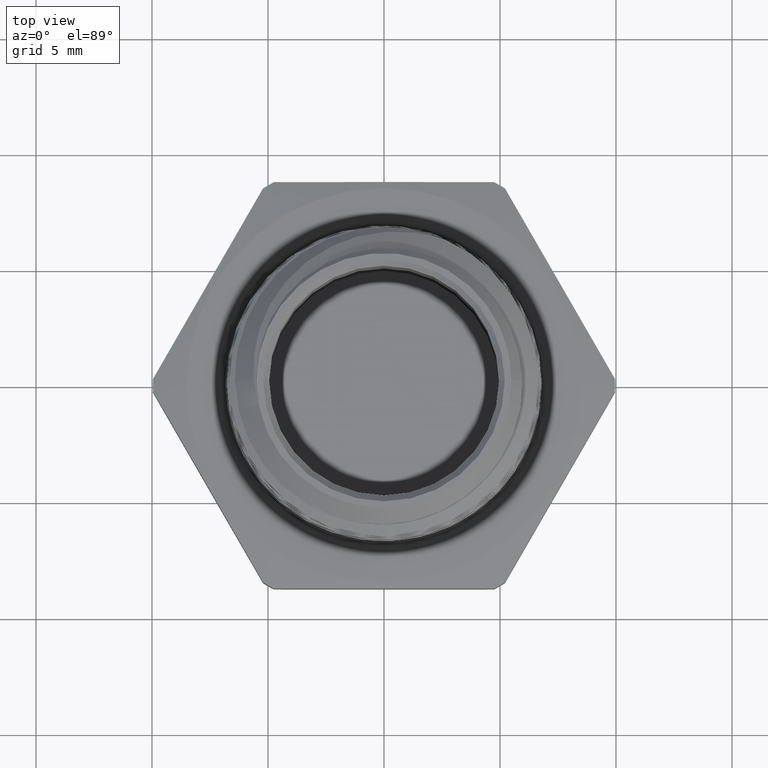
[diagram: clean part render]
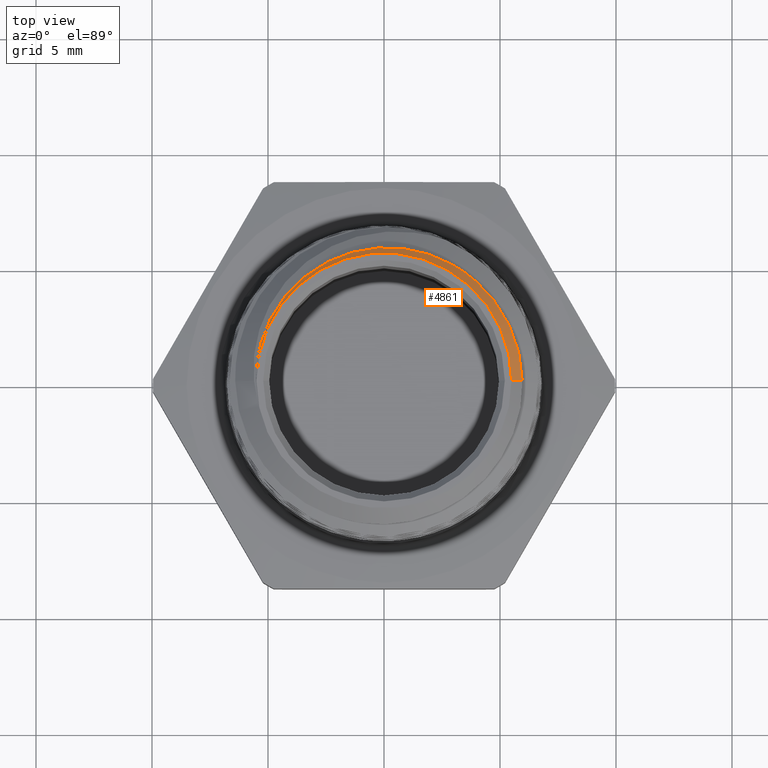
[diagram: same view with one face highlighted and labeled with its STEP entity id]
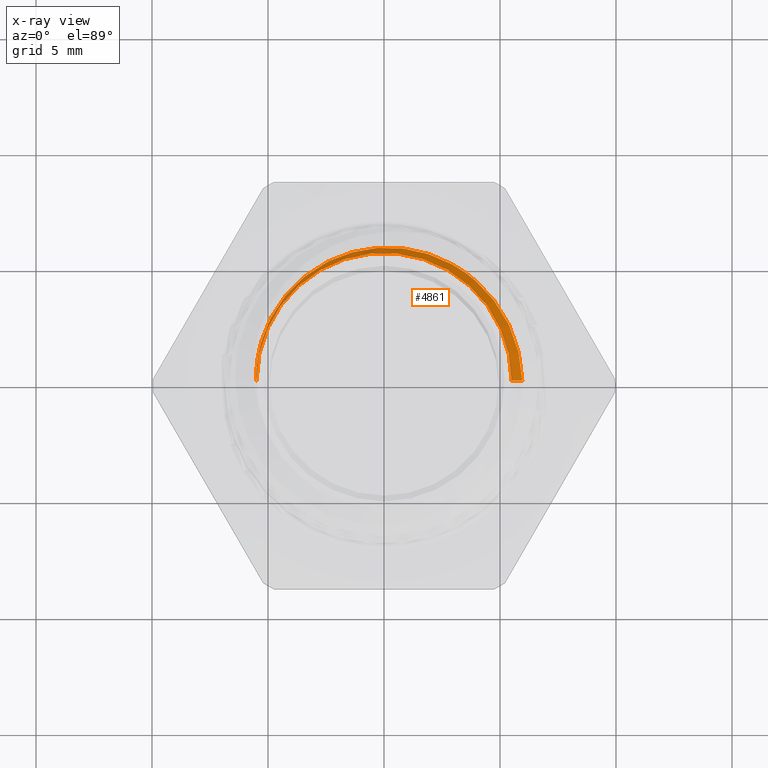
[diagram: x-ray of the same camera — body ghosted, the highlighted face saturated]
A machine part, top view. The second image highlights one B-rep face of the part: STEP entity #4861.
The next image is the same camera in x-ray: the body ghosted, the highlighted face saturated — about 0% of this face is hidden behind the body in this view.
In plain terms, the highlighted conical surface has half-angle 45 deg.
Its self-contained STEP definition (entity closure, byte-faithful):
#706 = AXIS2_PLACEMENT_3D ( 'NONE', #4402, #4403, #4404 ) ;
#732 = AXIS2_PLACEMENT_3D ( 'NONE', #3405, #3406, #3404 ) ;
#1596 = B_SPLINE_CURVE_WITH_KNOTS ( 'NONE', 3,
 ( #5155, #5163, #5156, #5154 ),
 .UNSPECIFIED., .F., .F.,
 ( 4, 4 ),
 ( 1.347251210040534700E-016, 0.0004323481786132546500 ),
 .UNSPECIFIED. ) ;
#1645 = B_SPLINE_CURVE_WITH_KNOTS ( 'NONE', 3,
 ( #4343, #4344, #4348, #4349, #4350, #4351, #4352, #4353, #4354, #4355, #4356, #4357, #4358, #4359, #4360, #4361, #4362, #4363, #4364, #4365, #4366, #4367, #4368, #4369, #4370, #4371, #4372, #4373, #4374, #4375, #4376, #4377, #4378, #4379, #4380, #4381, #4382, #4383, #4384, #4385 ),
 .UNSPECIFIED., .F., .F.,
 ( 4, 2, 2, 2, 2, 2, 2, 2, 2, 2, 2, 2, 2, 2, 2, 2, 2, 2, 2, 4 ),
 ( 0.02966671541711131100, 0.03075937400284263100, 0.03185203258857394900, 0.03294469117430527000, 0.03349102046717093000, 0.03403734976003659100, 0.03513000834576790500, 0.03622266693149922600, 0.03731532551723054600, 0.03840798410296186000, 0.03950064268869318100, 0.04004697198155883500, 0.04059330127442449500, 0.04168595986015581600, 0.04277861844588713700, 0.04332494773875279800, 0.04387127703161845800, 0.04496393561734977900, 0.04605659420308110000, 0.04714925278881242100 ),
 .UNSPECIFIED. ) ;
#1652 = EDGE_CURVE ( 'NONE', #1830, #1870, #1596, .T. ) ;
#1653 = EDGE_CURVE ( 'NONE', #1879, #1870, #2563, .T. ) ;
#1757 = EDGE_CURVE ( 'NONE', #1883, #1830, #1645, .T. ) ;
#1758 = EDGE_CURVE ( 'NONE', #1856, #1883, #2658, .T. ) ;
#1763 = EDGE_CURVE ( 'NONE', #1879, #1856, #2664, .T. ) ;
#1830 = VERTEX_POINT ( 'NONE', #4527 ) ;
#1856 = VERTEX_POINT ( 'NONE', #4550 ) ;
#1870 = VERTEX_POINT ( 'NONE', #4564 ) ;
#1879 = VERTEX_POINT ( 'NONE', #4573 ) ;
#1883 = VERTEX_POINT ( 'NONE', #4577 ) ;
#1969 = ORIENTED_EDGE ( 'NONE', *, *, #1653, .F. ) ;
#1971 = ORIENTED_EDGE ( 'NONE', *, *, #1652, .T. ) ;
#1973 = ORIENTED_EDGE ( 'NONE', *, *, #1757, .T. ) ;
#1976 = ORIENTED_EDGE ( 'NONE', *, *, #1758, .T. ) ;
#1978 = ORIENTED_EDGE ( 'NONE', *, *, #1763, .T. ) ;
#2012 = EDGE_LOOP ( 'NONE', ( #1978, #1976, #1973, #1971, #1969 ) ) ;
#2562 = VECTOR ( 'NONE', #5153, 39.37007874015748900 ) ;
#2563 = LINE ( 'NONE', #5185, #2562 ) ;
#2658 = LINE ( 'NONE', #4386, #2659 ) ;
#2659 = VECTOR ( 'NONE', #4387, 39.37007874015748900 ) ;
#2664 = CIRCLE ( 'NONE', #706, 0.2165000000000000800 ) ;
#2717 = FACE_OUTER_BOUND ( 'NONE', #2012, .T. ) ;
#2726 = CONICAL_SURFACE ( 'NONE', #732, 0.2615562317067677800, 0.7853981633974539400 ) ;
#3404 = DIRECTION ( 'NONE',  ( -1.000000000000000000, 0.0000000000000000000, 0.0000000000000000000 ) ) ;
#3405 = CARTESIAN_POINT ( 'NONE',  ( 0.0000000000000000000, 0.0000000000000000000, 0.5249437682932327500 ) ) ;
#3406 = DIRECTION ( 'NONE',  ( -0.0000000000000000000, -0.0000000000000000000, -1.000000000000000000 ) ) ;
#4343 = CARTESIAN_POINT ( 'NONE',  ( 0.2346543190317450000, -2.694737243426980100E-016, 0.5518456809682552600 ) ) ;
#4344 = CARTESIAN_POINT ( 'NONE',  ( 0.2343031175091687700, 0.01448583167142679200, 0.5521968824908318800 ) ) ;
#4348 = CARTESIAN_POINT ( 'NONE',  ( 0.2325944590360651000, 0.02892367767427217100, 0.5525534487838057500 ) ) ;
#4349 = CARTESIAN_POINT ( 'NONE',  ( 0.2266308189050325100, 0.05699528110387845600, 0.5532528832608167900 ) ) ;
#4350 = CARTESIAN_POINT ( 'NONE',  ( 0.2223733134705268300, 0.07074585328625294900, 0.5535984845380933500 ) ) ;
#4351 = CARTESIAN_POINT ( 'NONE',  ( 0.2111765271684534800, 0.09761845890427502100, 0.5543079700998209100 ) ) ;
#4352 = CARTESIAN_POINT ( 'NONE',  ( 0.2044112676619677900, 0.1103165593831866700, 0.5546640483021493300 ) ) ;
#4353 = CARTESIAN_POINT ( 'NONE',  ( 0.1925910152184107900, 0.1283058758433217000, 0.5551944733942511000 ) ) ;
#4354 = CARTESIAN_POINT ( 'NONE',  ( 0.1883701887126190100, 0.1341247300404667400, 0.5553708072271573700 ) ) ;
#4355 = CARTESIAN_POINT ( 'NONE',  ( 0.1793553344658686800, 0.1453998020902390100, 0.5557244142093573600 ) ) ;
#4356 = CARTESIAN_POINT ( 'NONE',  ( 0.1745329579811675200, 0.1508833474045341300, 0.5559026453348394600 ) ) ;
#4357 = CARTESIAN_POINT ( 'NONE',  ( 0.1594301920389897000, 0.1664965630497644300, 0.5564358789975282200 ) ) ;
#4358 = CARTESIAN_POINT ( 'NONE',  ( 0.1485136680210676600, 0.1758264456836369500, 0.5567937848399411300 ) ) ;
#4359 = CARTESIAN_POINT ( 'NONE',  ( 0.1250272445829440900, 0.1923828151771618000, 0.5575094845723088700 ) ) ;
#4360 = CARTESIAN_POINT ( 'NONE',  ( 0.1123088667317008000, 0.1996656044792600200, 0.5578696261608046000 ) ) ;
#4361 = CARTESIAN_POINT ( 'NONE',  ( 0.08603179308680264400, 0.2115472824573247100, 0.5585834915587889500 ) ) ;
#4362 = CARTESIAN_POINT ( 'NONE',  ( 0.07245602817809367000, 0.2161933279760405400, 0.5589434640410924100 ) ) ;
#4363 = CARTESIAN_POINT ( 'NONE',  ( 0.04443238993828494500, 0.2229028495415498200, 0.5596686450547731000 ) ) ;
#4364 = CARTESIAN_POINT ( 'NONE',  ( 0.02990730976935127000, 0.2249428028747370900, 0.5600331807776619500 ) ) ;
#4365 = CARTESIAN_POINT ( 'NONE',  ( 0.001186320152042360700, 0.2262024278259572600, 0.5607513473445281400 ) ) ;
#4366 = CARTESIAN_POINT ( 'NONE',  ( -0.01315405712566106500, 0.2254667272322503900, 0.5611140930074288700 ) ) ;
#4367 = CARTESIAN_POINT ( 'NONE',  ( -0.03463369737678134000, 0.2222681091874233200, 0.5616661979449423200 ) ) ;
#4368 = CARTESIAN_POINT ( 'NONE',  ( -0.04179929197080327300, 0.2208436563256543900, 0.5618513617815037400 ) ) ;
#4369 = CARTESIAN_POINT ( 'NONE',  ( -0.05580937678725897400, 0.2173488643848866800, 0.5622164190323715200 ) ) ;
#4370 = CARTESIAN_POINT ( 'NONE',  ( -0.06269318775228642500, 0.2152743424907721500, 0.5623973217228397400 ) ) ;
#4371 = CARTESIAN_POINT ( 'NONE',  ( -0.08298552604680556300, 0.2080821868377252500, 0.5629403382653526100 ) ) ;
#4372 = CARTESIAN_POINT ( 'NONE',  ( -0.09607315096711456500, 0.2019799546416477200, 0.5633080066425760800 ) ) ;
#4373 = CARTESIAN_POINT ( 'NONE',  ( -0.1210950298157839900, 0.1871607318248114400, 0.5640548173856018100 ) ) ;
#4374 = CARTESIAN_POINT ( 'NONE',  ( -0.1326929576446458400, 0.1786567130923805400, 0.5644199943516454700 ) ) ;
#4375 = CARTESIAN_POINT ( 'NONE',  ( -0.1487617993870611100, 0.1643093007585708400, 0.5649687584910975100 ) ) ;
#4376 = CARTESIAN_POINT ( 'NONE',  ( -0.1538949068806465800, 0.1592594197292466500, 0.5651522217852085200 ) ) ;
#4377 = CARTESIAN_POINT ( 'NONE',  ( -0.1637004182359509700, 0.1486078419282294000, 0.5655254507923680500 ) ) ;
#4378 = CARTESIAN_POINT ( 'NONE',  ( -0.1683786950613801500, 0.1429919934494706100, 0.5657150852085489600 ) ) ;
#4379 = CARTESIAN_POINT ( 'NONE',  ( -0.1814107754470596900, 0.1256850705536107200, 0.5662770669495653700 ) ) ;
#4380 = CARTESIAN_POINT ( 'NONE',  ( -0.1888851706149639300, 0.1134279030203615300, 0.5666453624740776000 ) ) ;
#4381 = CARTESIAN_POINT ( 'NONE',  ( -0.2014093250914260600, 0.08747725151702981400, 0.5673869001027741500 ) ) ;
#4382 = CARTESIAN_POINT ( 'NONE',  ( -0.2064475891770435900, 0.07369144908208689900, 0.5677678789737012900 ) ) ;
#4383 = CARTESIAN_POINT ( 'NONE',  ( -0.2135997929147669900, 0.04578805181477439000, 0.5685226588701106600 ) ) ;
#4384 = CARTESIAN_POINT ( 'NONE',  ( -0.2157973226477914700, 0.03154471282382839700, 0.5688959859777231700 ) ) ;
#4385 = CARTESIAN_POINT ( 'NONE',  ( -0.2165591472771045400, 0.01699790674889251400, 0.5692747871373334800 ) ) ;
#4386 = CARTESIAN_POINT ( 'NONE',  ( 0.2615562317067677800, 3.203140019567366300E-017, 0.5249437682932327500 ) ) ;
#4387 = DIRECTION ( 'NONE',  ( 0.7071067811865514600, 8.659560562354980900E-017, -0.7071067811865433500 ) ) ;
#4402 = CARTESIAN_POINT ( 'NONE',  ( 0.0000000000000000000, 0.0000000000000000000, 0.5699999999999999500 ) ) ;
#4403 = DIRECTION ( 'NONE',  ( -0.0000000000000000000, -0.0000000000000000000, -1.000000000000000000 ) ) ;
#4404 = DIRECTION ( 'NONE',  ( -1.000000000000000000, 0.0000000000000000000, 0.0000000000000000000 ) ) ;
#4527 = CARTESIAN_POINT ( 'NONE',  ( -0.2165591472771045400, 0.01699790674889251400, 0.5692747871373334800 ) ) ;
#4550 = CARTESIAN_POINT ( 'NONE',  ( 0.2165000000000000800, 2.873286106867003800E-017, 0.5699999999999999500 ) ) ;
#4564 = CARTESIAN_POINT ( 'NONE',  ( -0.2172128895515021700, -4.857306655882137600E-013, 0.5692871104484982200 ) ) ;
#4573 = CARTESIAN_POINT ( 'NONE',  ( -0.2165000000000000800, 0.0000000000000000000, 0.5699999999999999500 ) ) ;
#4577 = CARTESIAN_POINT ( 'NONE',  ( 0.2346543190317450000, -2.694737243426980100E-016, 0.5518456809682552600 ) ) ;
#4861 = ADVANCED_FACE ( 'NONE', ( #2717 ), #2726, .T. ) ;
#5153 = DIRECTION ( 'NONE',  ( -0.7071067811865514600, 0.0000000000000000000, -0.7071067811865433500 ) ) ;
#5154 = CARTESIAN_POINT ( 'NONE',  ( -0.2172128895515021700, -4.857306655882137600E-013, 0.5692871104484982200 ) ) ;
#5155 = CARTESIAN_POINT ( 'NONE',  ( -0.2165591472771045400, 0.01699790674889251400, 0.5692747871373334800 ) ) ;
#5156 = CARTESIAN_POINT ( 'NONE',  ( -0.2172188138808817700, 0.005670905670841442700, 0.5692811861191310300 ) ) ;
#5163 = CARTESIAN_POINT ( 'NONE',  ( -0.2169999717978645700, 0.01134092758775652100, 0.5692779737929600800 ) ) ;
#5185 = CARTESIAN_POINT ( 'NONE',  ( -0.2615562317067677800, 0.0000000000000000000, 0.5249437682932327500 ) ) ;